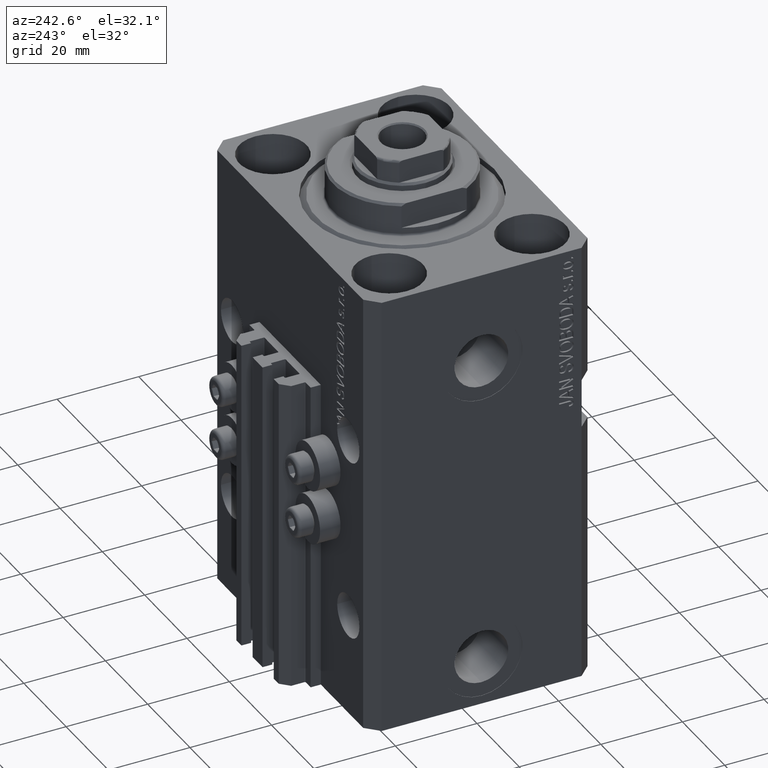
[diagram: clean part render]
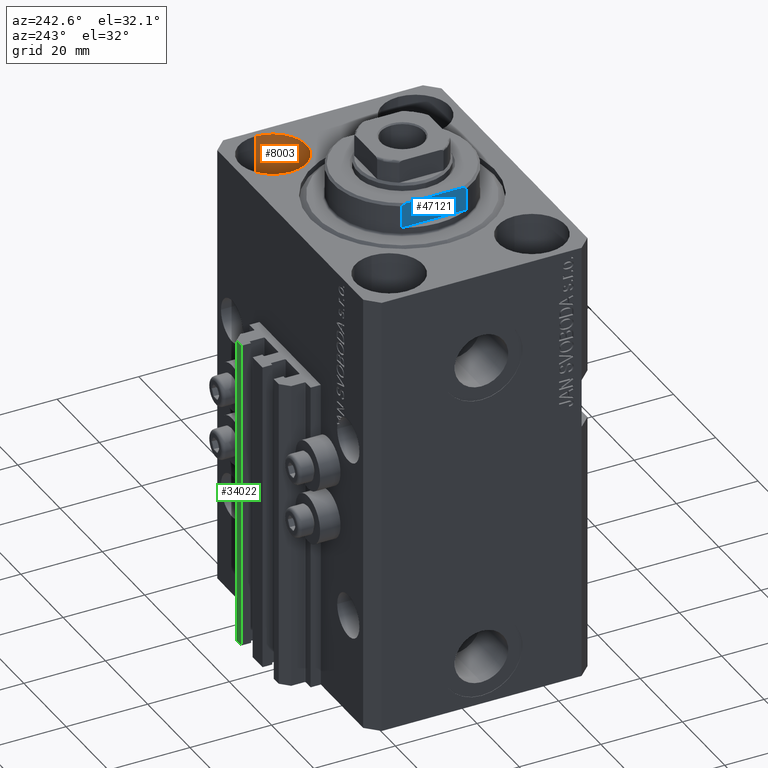
[diagram: same view with three faces highlighted in distinct colors, each labeled with its STEP entity id]
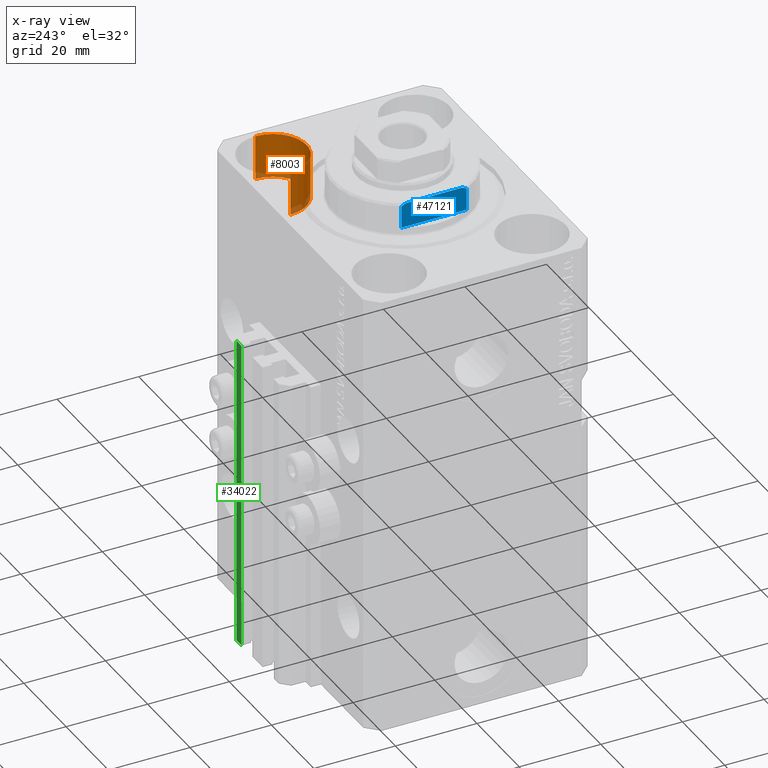
[diagram: x-ray of the same camera — body ghosted, the three highlighted faces saturated]
A machine part, auxiliary view with three faces highlighted in distinct colors.
The next image is the same camera in x-ray (body ghosted, the three faces saturated) — at least one of them is partly hidden behind the body in this view.
Their STEP definitions:

[orange] entity #8003 — the highlighted cylindrical surface (partial cylindrical patch) has radius 8.25 mm, axis along (0, 0, 1).
#76 = DIRECTION ( 'NONE',  ( -0.000000000000000000, -0.000000000000000000, 1.000000000000000000 ) ) ;
#428 = DIRECTION ( 'NONE',  ( 1.000000000000000000, 0.000000000000000000, 0.000000000000000000 ) ) ;
#2916 = AXIS2_PLACEMENT_3D ( 'NONE', #33697, #37284, #37515 ) ;
#3432 = LINE ( 'NONE', #32660, #18082 ) ;
#3897 = CARTESIAN_POINT ( 'NONE',  ( 27.49999999999999645, 17.50000000000001066, -11.00000000000000000 ) ) ;
#3969 = ORIENTED_EDGE ( 'NONE', *, *, #40029, .F. ) ;
#5983 = ORIENTED_EDGE ( 'NONE', *, *, #14722, .T. ) ;
#8003 = ADVANCED_FACE ( 'NONE', ( #36481 ), #10848, .F. ) ;
#10848 = CYLINDRICAL_SURFACE ( 'NONE', #20309, 8.249999999999992895 ) ;
#12142 = DIRECTION ( 'NONE',  ( 0.000000000000000000, 0.000000000000000000, 1.000000000000000000 ) ) ;
#13068 = CARTESIAN_POINT ( 'NONE',  ( 19.25000000000000000, 17.50000000000001066, 0.000000000000000000 ) ) ;
#14722 = EDGE_CURVE ( 'NONE', #25840, #38554, #39644, .T. ) ;
#15396 = EDGE_LOOP ( 'NONE', ( #39572, #42849, #5983, #3969 ) ) ;
#18037 = DIRECTION ( 'NONE',  ( -0.000000000000000000, -0.000000000000000000, 1.000000000000000000 ) ) ;
#18082 = VECTOR ( 'NONE', #18037, 1000.000000000000000 ) ;
#18791 = CARTESIAN_POINT ( 'NONE',  ( 35.74999999999999289, 17.50000000000001066, -11.00000000000000000 ) ) ;
#19136 = CARTESIAN_POINT ( 'NONE',  ( 19.25000000000000000, 17.50000000000001066, -11.00000000000000000 ) ) ;
#19568 = CARTESIAN_POINT ( 'NONE',  ( 27.49999999999999645, 17.50000000000001066, -11.00000000000000000 ) ) ;
#20128 = CARTESIAN_POINT ( 'NONE',  ( 35.74999999999999289, 17.50000000000001066, -11.00000000000000000 ) ) ;
#20309 = AXIS2_PLACEMENT_3D ( 'NONE', #3897, #76, #43885 ) ;
#20650 = CARTESIAN_POINT ( 'NONE',  ( 35.74999999999999289, 17.50000000000001066, 0.000000000000000000 ) ) ;
#21253 = VERTEX_POINT ( 'NONE', #20128 ) ;
#21441 = AXIS2_PLACEMENT_3D ( 'NONE', #19568, #12142, #428 ) ;
#22988 = EDGE_CURVE ( 'NONE', #47263, #21253, #40561, .T. ) ;
#23092 = LINE ( 'NONE', #18791, #32663 ) ;
#25840 = VERTEX_POINT ( 'NONE', #13068 ) ;
#32660 = CARTESIAN_POINT ( 'NONE',  ( 19.25000000000000000, 17.50000000000001066, -11.00000000000000000 ) ) ;
#32663 = VECTOR ( 'NONE', #33413, 1000.000000000000000 ) ;
#33413 = DIRECTION ( 'NONE',  ( -0.000000000000000000, -0.000000000000000000, 1.000000000000000000 ) ) ;
#33697 = CARTESIAN_POINT ( 'NONE',  ( 27.49999999999999645, 17.50000000000001066, 0.000000000000000000 ) ) ;
#36481 = FACE_OUTER_BOUND ( 'NONE', #15396, .T. ) ;
#37284 = DIRECTION ( 'NONE',  ( 0.000000000000000000, 0.000000000000000000, 1.000000000000000000 ) ) ;
#37515 = DIRECTION ( 'NONE',  ( 1.000000000000000000, 0.000000000000000000, 0.000000000000000000 ) ) ;
#38554 = VERTEX_POINT ( 'NONE', #20650 ) ;
#39572 = ORIENTED_EDGE ( 'NONE', *, *, #22988, .F. ) ;
#39644 = CIRCLE ( 'NONE', #2916, 8.249999999999992895 ) ;
#40029 = EDGE_CURVE ( 'NONE', #21253, #38554, #23092, .T. ) ;
#40561 = CIRCLE ( 'NONE', #21441, 8.249999999999992895 ) ;
#42689 = EDGE_CURVE ( 'NONE', #47263, #25840, #3432, .T. ) ;
#42849 = ORIENTED_EDGE ( 'NONE', *, *, #42689, .T. ) ;
#43885 = DIRECTION ( 'NONE',  ( 1.000000000000000000, 0.000000000000000000, 0.000000000000000000 ) ) ;
#47263 = VERTEX_POINT ( 'NONE', #19136 ) ;

[blue] entity #47121 — the highlighted planar face has unit normal (-1, 0, 0).
#812 = DIRECTION ( 'NONE',  ( 0.000000000000000000, 0.000000000000000000, -1.000000000000000000 ) ) ;
#1539 = VERTEX_POINT ( 'NONE', #31745 ) ;
#2165 = EDGE_LOOP ( 'NONE', ( #46335, #9164, #43531, #5359, #35405, #5580 ) ) ;
#3044 = CARTESIAN_POINT ( 'NONE',  ( 14.99999999999999645, 6.873863542433765517, -8.000000000000000000 ) ) ;
#3406 = CARTESIAN_POINT ( 'NONE',  ( 14.99999999999999645, 8.000000000000003553, -2.000000000000000000 ) ) ;
#4394 = LINE ( 'NONE', #33621, #27384 ) ;
#4883 = CARTESIAN_POINT ( 'NONE',  ( 14.99999999999999645, 6.873863542433765517, -8.000000000000000000 ) ) ;
#5359 = ORIENTED_EDGE ( 'NONE', *, *, #24321, .F. ) ;
#5580 = ORIENTED_EDGE ( 'NONE', *, *, #35990, .F. ) ;
#5886 = LINE ( 'NONE', #13315, #44496 ) ;
#6704 = DIRECTION ( 'NONE',  ( 0.000000000000000000, -1.000000000000000000, -0.000000000000000000 ) ) ;
#9164 = ORIENTED_EDGE ( 'NONE', *, *, #29052, .T. ) ;
#10782 = DIRECTION ( 'NONE',  ( -0.000000000000000000, 0.000000000000000000, -1.000000000000000000 ) ) ;
#11394 = CARTESIAN_POINT ( 'NONE',  ( 15.00000000000000000, -8.000000000000001776, -7.500000000000007105 ) ) ;
#13315 = CARTESIAN_POINT ( 'NONE',  ( 15.00000000000000000, -42.42640687119285303, -2.000000000000000000 ) ) ;
#13826 = B_SPLINE_CURVE_WITH_KNOTS ( 'NONE', 3,
 ( #19282, #40604, #41320, #11394 ),
 .UNSPECIFIED., .F., .F.,
 ( 4, 4 ),
 ( 0.04875332532859059237, 0.04998905627745663105 ),
 .UNSPECIFIED. ) ;
#14148 = FACE_OUTER_BOUND ( 'NONE', #2165, .T. ) ;
#14531 = CARTESIAN_POINT ( 'NONE',  ( 15.00000000000000000, -8.000000000000001776, -7.500000000000007105 ) ) ;
#16411 = LINE ( 'NONE', #42277, #21974 ) ;
#16434 = B_SPLINE_CURVE_WITH_KNOTS ( 'NONE', 3,
 ( #32036, #43729, #43506, #3044 ),
 .UNSPECIFIED., .F., .F.,
 ( 4, 4 ),
 ( 0.03336039268697043453, 0.03459498301323849639 ),
 .UNSPECIFIED. ) ;
#17007 = CARTESIAN_POINT ( 'NONE',  ( 15.00000000000000000, -42.42640687119285303, -8.000000000000000000 ) ) ;
#17714 = LINE ( 'NONE', #17007, #25834 ) ;
#19282 = CARTESIAN_POINT ( 'NONE',  ( 14.99999999999999645, -6.873863542433765517, -8.000000000000000000 ) ) ;
#19712 = VERTEX_POINT ( 'NONE', #14531 ) ;
#20512 = AXIS2_PLACEMENT_3D ( 'NONE', #36874, #39773, #10782 ) ;
#21974 = VECTOR ( 'NONE', #44904, 1000.000000000000000 ) ;
#22257 = PLANE ( 'NONE',  #20512 ) ;
#22456 = VERTEX_POINT ( 'NONE', #28292 ) ;
#24321 = EDGE_CURVE ( 'NONE', #1539, #19712, #13826, .T. ) ;
#25834 = VECTOR ( 'NONE', #6704, 1000.000000000000000 ) ;
#27384 = VECTOR ( 'NONE', #812, 1000.000000000000000 ) ;
#28145 = VERTEX_POINT ( 'NONE', #39414 ) ;
#28292 = CARTESIAN_POINT ( 'NONE',  ( 15.00000000000000000, 8.000000000000001776, -7.500000000000007105 ) ) ;
#28666 = VERTEX_POINT ( 'NONE', #3406 ) ;
#29052 = EDGE_CURVE ( 'NONE', #28666, #28145, #5886, .T. ) ;
#31745 = CARTESIAN_POINT ( 'NONE',  ( 14.99999999999999645, -6.873863542433765517, -8.000000000000000000 ) ) ;
#32036 = CARTESIAN_POINT ( 'NONE',  ( 15.00000000000000000, 8.000000000000001776, -7.500000000000007105 ) ) ;
#33621 = CARTESIAN_POINT ( 'NONE',  ( 15.00000000000000000, -8.000000000000001776, -8.000000000000000000 ) ) ;
#34882 = DIRECTION ( 'NONE',  ( 0.000000000000000000, -1.000000000000000000, -0.000000000000000000 ) ) ;
#35405 = ORIENTED_EDGE ( 'NONE', *, *, #46067, .F. ) ;
#35990 = EDGE_CURVE ( 'NONE', #22456, #36160, #16434, .T. ) ;
#36160 = VERTEX_POINT ( 'NONE', #4883 ) ;
#36874 = CARTESIAN_POINT ( 'NONE',  ( 15.00000000000000000, -42.42640687119285303, -2.000000000000000000 ) ) ;
#39414 = CARTESIAN_POINT ( 'NONE',  ( 14.99999999999999645, -8.000000000000003553, -2.000000000000000000 ) ) ;
#39773 = DIRECTION ( 'NONE',  ( 1.000000000000000000, 0.000000000000000000, -0.000000000000000000 ) ) ;
#40604 = CARTESIAN_POINT ( 'NONE',  ( 15.00000000000000000, -7.254193676168129379, -7.841555306644510281 ) ) ;
#41320 = CARTESIAN_POINT ( 'NONE',  ( 15.00000000000000000, -7.629305121525812083, -7.674444648693743432 ) ) ;
#42277 = CARTESIAN_POINT ( 'NONE',  ( 15.00000000000000000, 8.000000000000001776, -8.000000000000000000 ) ) ;
#43506 = CARTESIAN_POINT ( 'NONE',  ( 15.00000000000000000, 7.253126193285932111, -7.842000017654665811 ) ) ;
#43531 = ORIENTED_EDGE ( 'NONE', *, *, #46533, .T. ) ;
#43729 = CARTESIAN_POINT ( 'NONE',  ( 15.00000000000000000, 7.628315461082481264, -7.674910371255307062 ) ) ;
#44496 = VECTOR ( 'NONE', #34882, 1000.000000000000000 ) ;
#44618 = EDGE_CURVE ( 'NONE', #22456, #28666, #16411, .T. ) ;
#44904 = DIRECTION ( 'NONE',  ( -0.000000000000000000, -0.000000000000000000, 1.000000000000000000 ) ) ;
#46067 = EDGE_CURVE ( 'NONE', #36160, #1539, #17714, .T. ) ;
#46335 = ORIENTED_EDGE ( 'NONE', *, *, #44618, .T. ) ;
#46533 = EDGE_CURVE ( 'NONE', #28145, #19712, #4394, .T. ) ;
#47121 = ADVANCED_FACE ( 'NONE', ( #14148 ), #22257, .T. ) ;

[green] entity #34022 — the highlighted planar face has unit normal (0, 1, 0).
#1572 = DIRECTION ( 'NONE',  ( -1.000000000000000000, 0.000000000000000000, 0.000000000000000000 ) ) ;
#3482 = CARTESIAN_POINT ( 'NONE',  ( 7.649999999999998579, 35.50000000000001421, -110.0000000000000000 ) ) ;
#4187 = DIRECTION ( 'NONE',  ( 0.000000000000000000, 0.000000000000000000, 1.000000000000000000 ) ) ;
#4425 = LINE ( 'NONE', #8006, #18377 ) ;
#4698 = PLANE ( 'NONE',  #4920 ) ;
#4920 = AXIS2_PLACEMENT_3D ( 'NONE', #15969, #11877, #41109 ) ;
#5707 = DIRECTION ( 'NONE',  ( 0.000000000000000000, 0.000000000000000000, 1.000000000000000000 ) ) ;
#6060 = VERTEX_POINT ( 'NONE', #13557 ) ;
#6331 = LINE ( 'NONE', #35571, #42536 ) ;
#7522 = ORIENTED_EDGE ( 'NONE', *, *, #41093, .F. ) ;
#8006 = CARTESIAN_POINT ( 'NONE',  ( 9.999999999999998224, 35.50000000000001421, -110.0000000000000000 ) ) ;
#8775 = FACE_OUTER_BOUND ( 'NONE', #34404, .T. ) ;
#9217 = DIRECTION ( 'NONE',  ( -1.000000000000000000, 0.000000000000000000, 0.000000000000000000 ) ) ;
#11877 = DIRECTION ( 'NONE',  ( 0.000000000000000000, 1.000000000000000000, -0.000000000000000000 ) ) ;
#13557 = CARTESIAN_POINT ( 'NONE',  ( 7.649999999999998579, 35.50000000000001421, -110.0000000000000000 ) ) ;
#15930 = LINE ( 'NONE', #31015, #44502 ) ;
#15969 = CARTESIAN_POINT ( 'NONE',  ( 9.999999999999998224, 35.50000000000001421, -110.0000000000000000 ) ) ;
#18377 = VECTOR ( 'NONE', #4187, 1000.000000000000000 ) ;
#23367 = EDGE_CURVE ( 'NONE', #28541, #30330, #4425, .T. ) ;
#23432 = EDGE_CURVE ( 'NONE', #28541, #6060, #15930, .T. ) ;
#27015 = ORIENTED_EDGE ( 'NONE', *, *, #29858, .T. ) ;
#28541 = VERTEX_POINT ( 'NONE', #31942 ) ;
#29858 = EDGE_CURVE ( 'NONE', #6060, #44312, #36300, .T. ) ;
#30011 = VECTOR ( 'NONE', #5707, 1000.000000000000000 ) ;
#30330 = VERTEX_POINT ( 'NONE', #44515 ) ;
#31015 = CARTESIAN_POINT ( 'NONE',  ( 9.999999999999998224, 35.50000000000001421, -110.0000000000000000 ) ) ;
#31942 = CARTESIAN_POINT ( 'NONE',  ( 9.999999999999998224, 35.50000000000001421, -110.0000000000000000 ) ) ;
#34022 = ADVANCED_FACE ( 'NONE', ( #8775 ), #4698, .T. ) ;
#34404 = EDGE_LOOP ( 'NONE', ( #7522, #44809, #34462, #27015 ) ) ;
#34462 = ORIENTED_EDGE ( 'NONE', *, *, #23432, .T. ) ;
#35571 = CARTESIAN_POINT ( 'NONE',  ( 9.999999999999998224, 35.50000000000001421, -33.00000000000000000 ) ) ;
#36300 = LINE ( 'NONE', #3482, #30011 ) ;
#39063 = CARTESIAN_POINT ( 'NONE',  ( 7.649999999999998579, 35.50000000000001421, -33.00000000000000000 ) ) ;
#41093 = EDGE_CURVE ( 'NONE', #30330, #44312, #6331, .T. ) ;
#41109 = DIRECTION ( 'NONE',  ( 0.000000000000000000, 0.000000000000000000, 1.000000000000000000 ) ) ;
#42536 = VECTOR ( 'NONE', #9217, 1000.000000000000000 ) ;
#44312 = VERTEX_POINT ( 'NONE', #39063 ) ;
#44502 = VECTOR ( 'NONE', #1572, 1000.000000000000000 ) ;
#44515 = CARTESIAN_POINT ( 'NONE',  ( 9.999999999999998224, 35.50000000000001421, -33.00000000000000000 ) ) ;
#44809 = ORIENTED_EDGE ( 'NONE', *, *, #23367, .F. ) ;